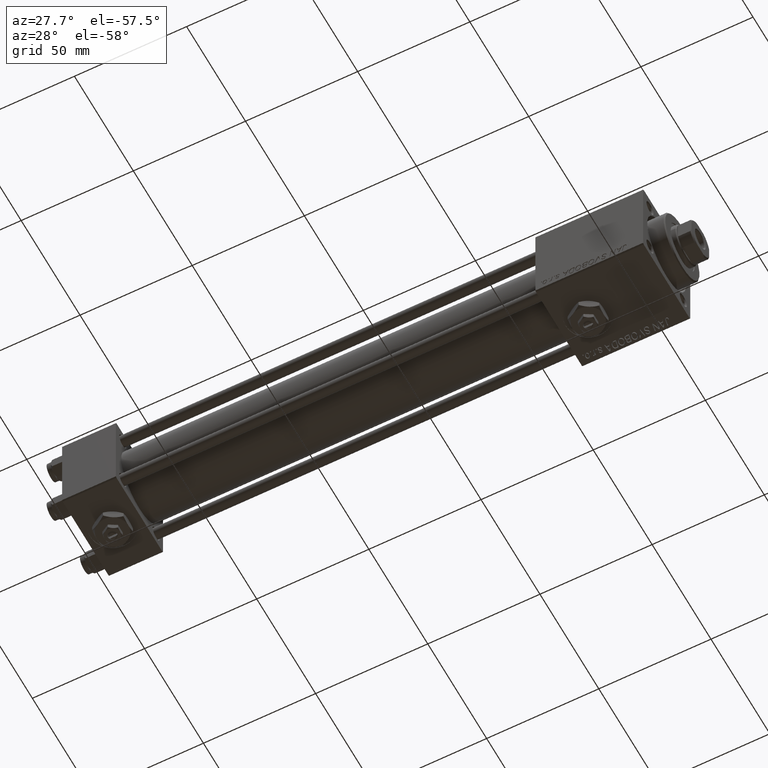
[diagram: clean part render]
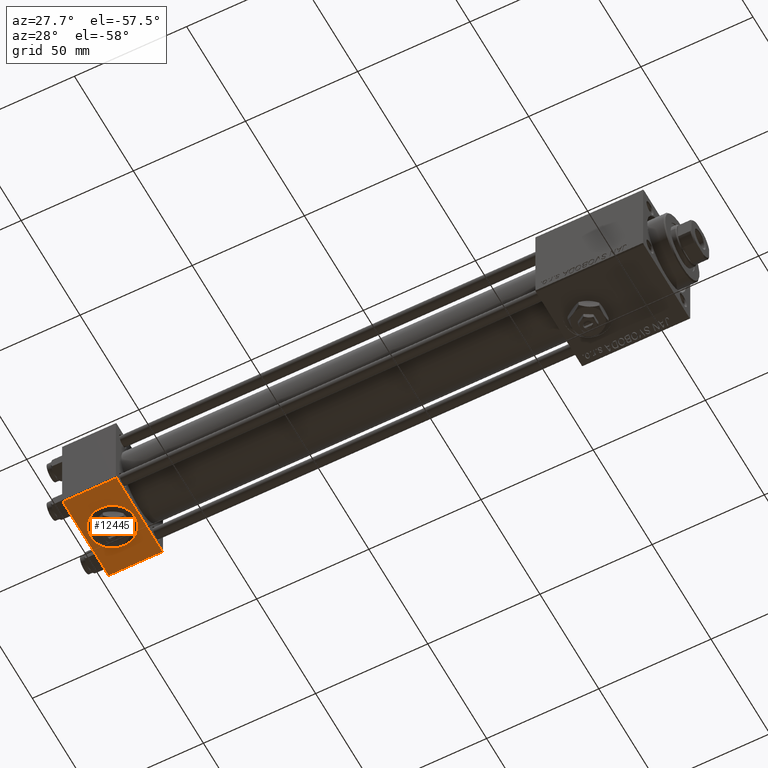
[diagram: same view with one face highlighted and labeled with its STEP entity id]
A machine part, auxiliary view. The second image highlights one B-rep face of the part: STEP entity #12445.
In plain terms, the highlighted planar face has unit normal (0, -0, -1).
Its self-contained STEP definition (entity closure, byte-faithful):
#1481 = CARTESIAN_POINT ( 'NONE',  ( 0.000000000000000000, 19.50000000000000711, -20.00000000000000711 ) ) ;
#1866 = ORIENTED_EDGE ( 'NONE', *, *, #50288, .F. ) ;
#2712 = LINE ( 'NONE', #26689, #40969 ) ;
#3767 = CIRCLE ( 'NONE', #41644, 10.00000000000000178 ) ;
#5026 = CARTESIAN_POINT ( 'NONE',  ( 24.00000000000000000, 19.50000000000000711, -20.00000000000000711 ) ) ;
#5305 = DIRECTION ( 'NONE',  ( 0.000000000000000000, -1.734723475976806848E-16, -1.000000000000000000 ) ) ;
#5767 = AXIS2_PLACEMENT_3D ( 'NONE', #27938, #24258, #20044 ) ;
#5918 = LINE ( 'NONE', #18545, #20795 ) ;
#6332 = VERTEX_POINT ( 'NONE', #47365 ) ;
#6914 = ORIENTED_EDGE ( 'NONE', *, *, #30815, .F. ) ;
#7239 = LINE ( 'NONE', #39887, #28153 ) ;
#12445 = ADVANCED_FACE ( 'NONE', ( #36481, #20162 ), #36224, .T. ) ;
#12548 = CARTESIAN_POINT ( 'NONE',  ( 24.00000000000000000, 20.00000000000000000, -20.00000000000000711 ) ) ;
#13484 = DIRECTION ( 'NONE',  ( 0.000000000000000000, 1.000000000000000000, 0.000000000000000000 ) ) ;
#14337 = DIRECTION ( 'NONE',  ( 0.000000000000000000, -1.000000000000000000, 1.734723475976807094E-16 ) ) ;
#18545 = CARTESIAN_POINT ( 'NONE',  ( 0.000000000000000000, -19.50000000000000711, -20.00000000000000000 ) ) ;
#20044 = DIRECTION ( 'NONE',  ( 0.000000000000000000, 1.000000000000000000, 0.000000000000000000 ) ) ;
#20162 = FACE_OUTER_BOUND ( 'NONE', #22269, .T. ) ;
#20795 = VECTOR ( 'NONE', #33819, 1000.000000000000000 ) ;
#21095 = DIRECTION ( 'NONE',  ( 1.000000000000000000, 0.000000000000000000, 0.000000000000000000 ) ) ;
#22269 = EDGE_LOOP ( 'NONE', ( #45851, #26335, #36354, #51293 ) ) ;
#22474 = CARTESIAN_POINT ( 'NONE',  ( 12.00000000000000178, -10.00000000000000711, -20.00000000000000355 ) ) ;
#23839 = VERTEX_POINT ( 'NONE', #25294 ) ;
#24258 = DIRECTION ( 'NONE',  ( 0.000000000000000000, -1.734723475976806848E-16, -1.000000000000000000 ) ) ;
#24641 = DIRECTION ( 'NONE',  ( 0.000000000000000000, -1.734723475976806848E-16, -1.000000000000000000 ) ) ;
#25037 = LINE ( 'NONE', #5026, #29249 ) ;
#25294 = CARTESIAN_POINT ( 'NONE',  ( 24.00000000000000000, -19.50000000000000711, -20.00000000000000000 ) ) ;
#26335 = ORIENTED_EDGE ( 'NONE', *, *, #48358, .T. ) ;
#26689 = CARTESIAN_POINT ( 'NONE',  ( 0.000000000000000000, 20.00000000000000000, -20.00000000000000711 ) ) ;
#26814 = AXIS2_PLACEMENT_3D ( 'NONE', #12548, #24641, #44125 ) ;
#27938 = CARTESIAN_POINT ( 'NONE',  ( 12.00000000000000000, -4.939023110930437544E-15, -20.00000000000000355 ) ) ;
#28153 = VECTOR ( 'NONE', #47514, 1000.000000000000000 ) ;
#29249 = VECTOR ( 'NONE', #21095, 1000.000000000000000 ) ;
#30815 = EDGE_CURVE ( 'NONE', #6332, #49337, #3767, .T. ) ;
#31157 = CARTESIAN_POINT ( 'NONE',  ( 0.000000000000000000, -19.50000000000000711, -20.00000000000000000 ) ) ;
#31304 = VERTEX_POINT ( 'NONE', #1481 ) ;
#31506 = EDGE_CURVE ( 'NONE', #41696, #23839, #7239, .T. ) ;
#31745 = CARTESIAN_POINT ( 'NONE',  ( 24.00000000000000000, 19.50000000000000711, -20.00000000000000711 ) ) ;
#33819 = DIRECTION ( 'NONE',  ( -1.000000000000000000, 0.000000000000000000, 0.000000000000000000 ) ) ;
#34695 = EDGE_LOOP ( 'NONE', ( #6914, #1866 ) ) ;
#36224 = PLANE ( 'NONE',  #26814 ) ;
#36261 = EDGE_CURVE ( 'NONE', #31304, #46272, #2712, .T. ) ;
#36354 = ORIENTED_EDGE ( 'NONE', *, *, #31506, .T. ) ;
#36481 = FACE_BOUND ( 'NONE', #34695, .T. ) ;
#39887 = CARTESIAN_POINT ( 'NONE',  ( 24.00000000000000000, 20.00000000000000000, -20.00000000000000711 ) ) ;
#40969 = VECTOR ( 'NONE', #14337, 1000.000000000000000 ) ;
#41644 = AXIS2_PLACEMENT_3D ( 'NONE', #50318, #5305, #13484 ) ;
#41696 = VERTEX_POINT ( 'NONE', #31745 ) ;
#43929 = EDGE_CURVE ( 'NONE', #23839, #46272, #5918, .T. ) ;
#44125 = DIRECTION ( 'NONE',  ( 0.000000000000000000, 1.000000000000000000, -1.734723475976806848E-16 ) ) ;
#45851 = ORIENTED_EDGE ( 'NONE', *, *, #36261, .F. ) ;
#46137 = CIRCLE ( 'NONE', #5767, 10.00000000000000178 ) ;
#46272 = VERTEX_POINT ( 'NONE', #31157 ) ;
#47365 = CARTESIAN_POINT ( 'NONE',  ( 12.00000000000000000, 9.999999999999996447, -20.00000000000000355 ) ) ;
#47514 = DIRECTION ( 'NONE',  ( 0.000000000000000000, -1.000000000000000000, 1.734723475976807094E-16 ) ) ;
#48358 = EDGE_CURVE ( 'NONE', #31304, #41696, #25037, .T. ) ;
#49337 = VERTEX_POINT ( 'NONE', #22474 ) ;
#50288 = EDGE_CURVE ( 'NONE', #49337, #6332, #46137, .T. ) ;
#50318 = CARTESIAN_POINT ( 'NONE',  ( 12.00000000000000000, -4.939023110930437544E-15, -20.00000000000000355 ) ) ;
#51293 = ORIENTED_EDGE ( 'NONE', *, *, #43929, .T. ) ;